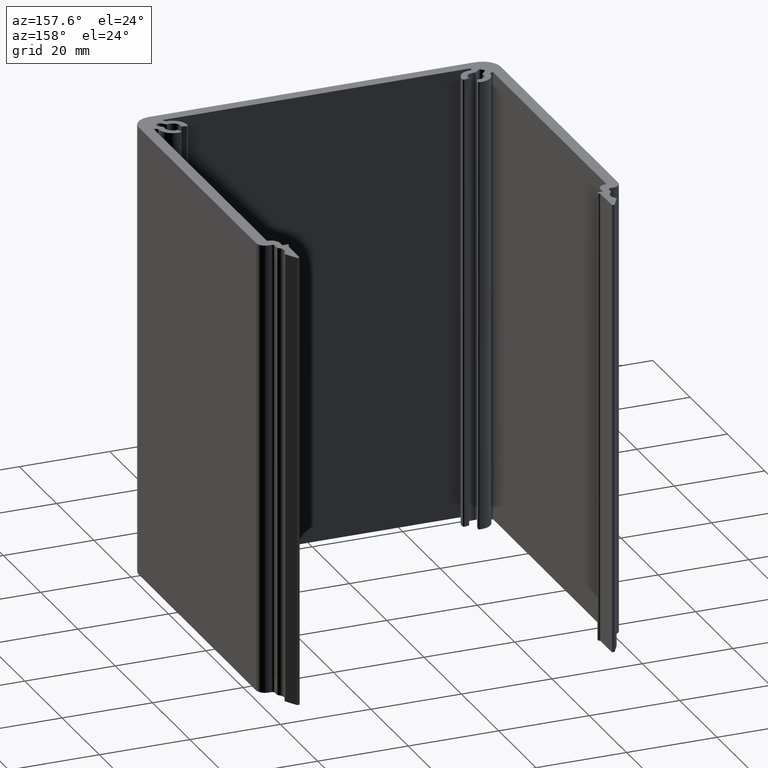
[diagram: clean part render]
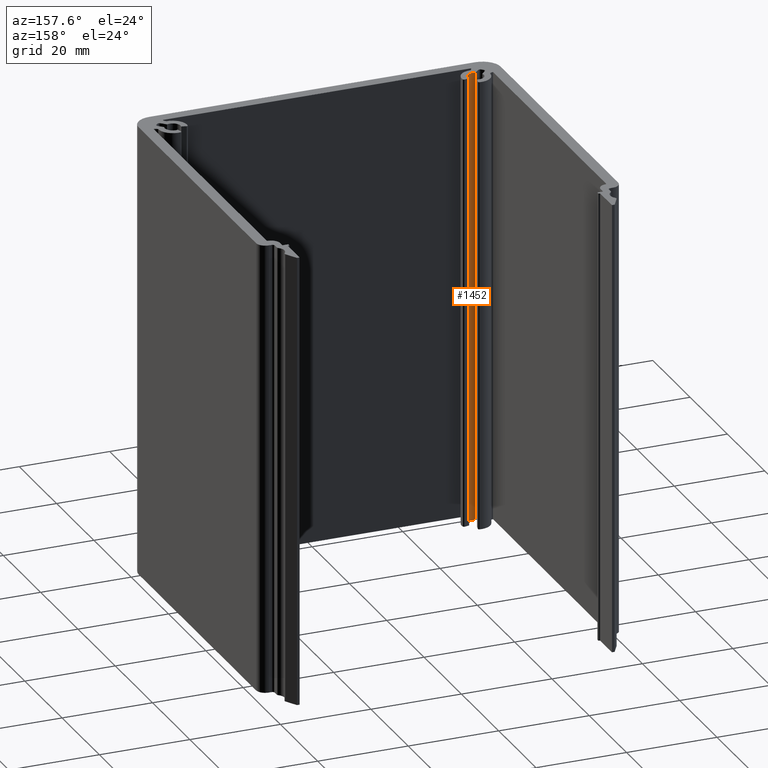
[diagram: same view with one face highlighted and labeled with its STEP entity id]
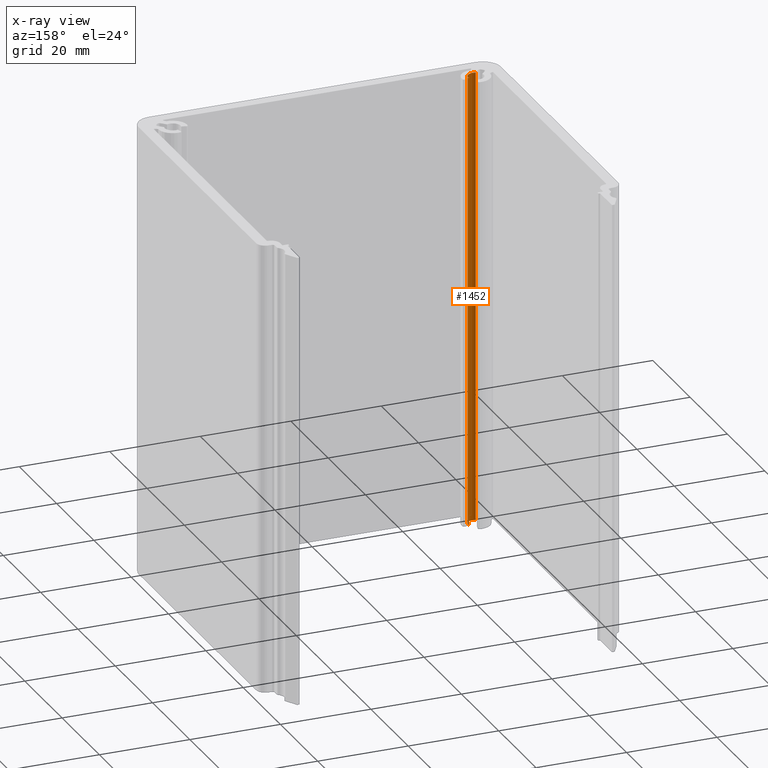
[diagram: x-ray of the same camera — body ghosted, the highlighted face saturated]
A machine part, auxiliary view. The second image highlights one B-rep face of the part: STEP entity #1452.
The next image is the same camera in x-ray: the body ghosted, the highlighted face saturated — about 0% of this face is hidden behind the body in this view.
In plain terms, the highlighted cylindrical surface (edge-blend (fillet) strip) has radius 1.75 mm, axis along (0, 0, 1).
Its self-contained STEP definition (entity closure, byte-faithful):
#78=FACE_OUTER_BOUND('',#154,.T.);
#154=EDGE_LOOP('',(#1041,#1042,#1043,#1044));
#256=LINE('',#2244,#406);
#257=LINE('',#2250,#407);
#406=VECTOR('',#1792,100.);
#407=VECTOR('',#1799,100.);
#527=CIRCLE('',#1551,1.74999999807963);
#528=CIRCLE('',#1552,1.74999999807963);
#625=VERTEX_POINT('',#2240);
#626=VERTEX_POINT('',#2242);
#627=VERTEX_POINT('',#2246);
#628=VERTEX_POINT('',#2248);
#796=EDGE_CURVE('',#625,#626,#256,.T.);
#797=EDGE_CURVE('',#627,#625,#527,.T.);
#798=EDGE_CURVE('',#628,#626,#528,.T.);
#799=EDGE_CURVE('',#627,#628,#257,.T.);
#1041=ORIENTED_EDGE('',*,*,#797,.T.);
#1042=ORIENTED_EDGE('',*,*,#796,.T.);
#1043=ORIENTED_EDGE('',*,*,#798,.F.);
#1044=ORIENTED_EDGE('',*,*,#799,.F.);
#1403=CYLINDRICAL_SURFACE('',#1550,1.74999999807963);
#1452=ADVANCED_FACE('',(#78),#1403,.F.);
#1550=AXIS2_PLACEMENT_3D('',#2245,#1793,#1794);
#1551=AXIS2_PLACEMENT_3D('',#2247,#1795,#1796);
#1552=AXIS2_PLACEMENT_3D('',#2249,#1797,#1798);
#1792=DIRECTION('',(0.,0.,1.));
#1793=DIRECTION('center_axis',(0.,0.,1.));
#1794=DIRECTION('ref_axis',(0.335830802045908,0.941922328218841,0.));
#1795=DIRECTION('center_axis',(0.,0.,-1.));
#1796=DIRECTION('ref_axis',(0.335830802045908,0.941922328218841,0.));
#1797=DIRECTION('center_axis',(0.,0.,-1.));
#1798=DIRECTION('ref_axis',(0.335830802045908,0.941922328218841,0.));
#1799=DIRECTION('',(0.,0.,1.));
#2240=CARTESIAN_POINT('',(-34.0877039065818,4.85163592438539,0.));
#2242=CARTESIAN_POINT('',(-34.0877039065818,4.85163592438539,100.));
#2244=CARTESIAN_POINT('',(-34.0877039065818,4.85163592438539,0.));
#2245=CARTESIAN_POINT('Origin',(-33.5000000036464,6.49999999695945,0.));
#2246=CARTESIAN_POINT('',(-31.8096298090644,6.95293332378278,0.));
#2247=CARTESIAN_POINT('Origin',(-33.5000000036464,6.49999999695945,0.));
#2248=CARTESIAN_POINT('',(-31.8096298090644,6.95293332378278,100.));
#2249=CARTESIAN_POINT('Origin',(-33.5000000036464,6.49999999695945,100.));
#2250=CARTESIAN_POINT('',(-31.8096298090644,6.95293332378278,0.));